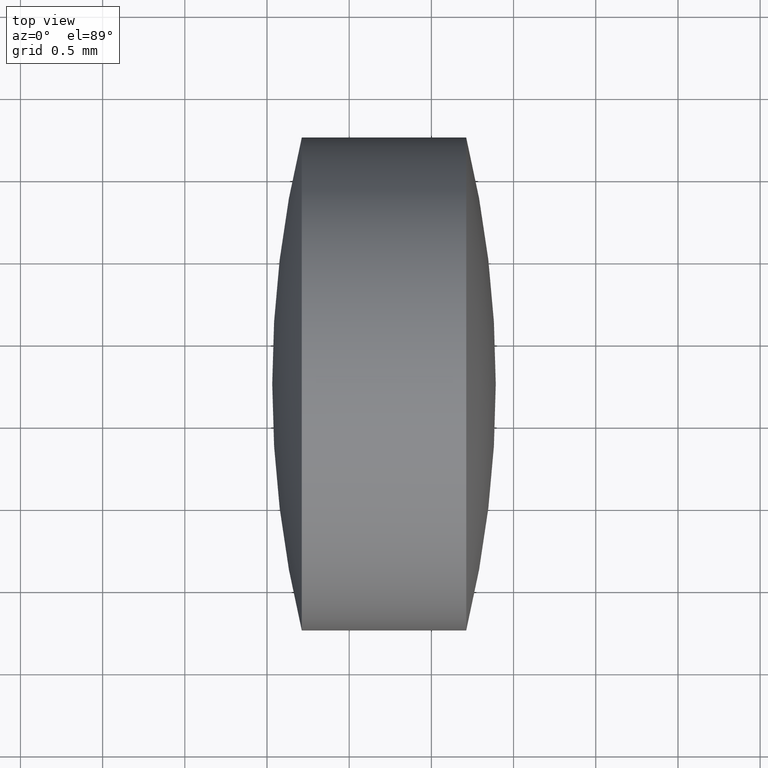
[diagram: clean part render]
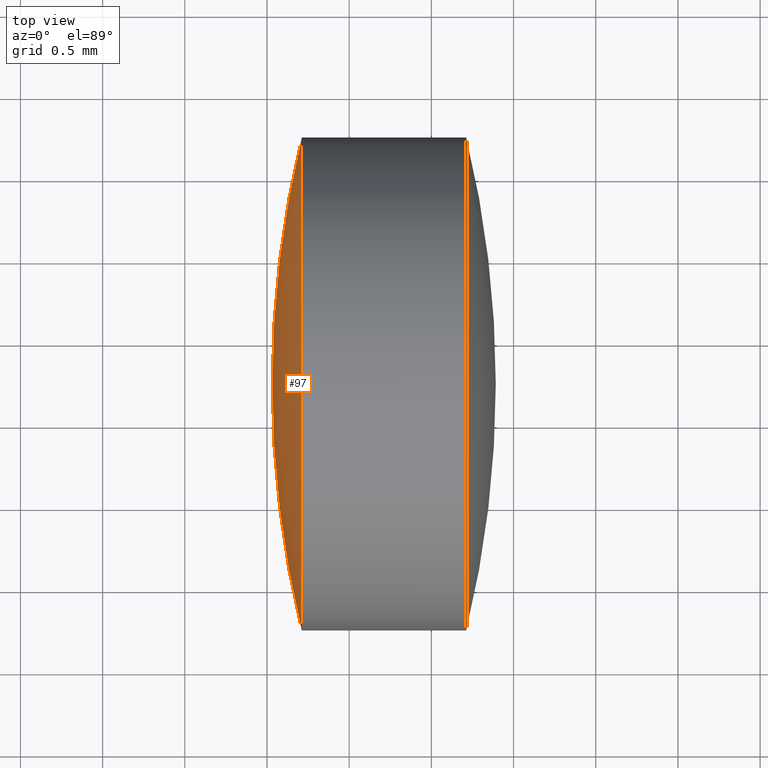
[diagram: same view with one face highlighted and labeled with its STEP entity id]
A machine part, top view. The second image highlights one B-rep face of the part: STEP entity #97.
In plain terms, the highlighted spherical surface has radius 6.3433 mm.
Its self-contained STEP definition (entity closure, byte-faithful):
#3 = CIRCLE ( 'NONE', #6, 6.343264629644567200 ) ;
#6 = AXIS2_PLACEMENT_3D ( 'NONE', #142, #54, #74 ) ;
#22 = CARTESIAN_POINT ( 'NONE',  ( 9.711656042241019200, 4.242084833774320900, -1.836980695753577600E-016 ) ) ;
#26 = VERTEX_POINT ( 'NONE', #22 ) ;
#29 = DIRECTION ( 'NONE',  ( 2.842884826176247500E-031, 1.224646799147353200E-016, -1.000000000000000000 ) ) ;
#42 = AXIS2_PLACEMENT_3D ( 'NONE', #296, #68, #269 ) ;
#45 = DIRECTION ( 'NONE',  ( -1.000000000000000000, 2.321391627492575400E-015, -0.0000000000000000000 ) ) ;
#46 = EDGE_CURVE ( 'NONE', #26, #137, #121, .T. ) ;
#54 = DIRECTION ( 'NONE',  ( 0.0000000000000000000, 0.0000000000000000000, 1.000000000000000000 ) ) ;
#56 = CIRCLE ( 'NONE', #184, 6.343264629644565400 ) ;
#62 = DIRECTION ( 'NONE',  ( 0.0000000000000000000, 1.000000000000000000, 1.224646799147353000E-016 ) ) ;
#65 = EDGE_CURVE ( 'NONE', #137, #254, #3, .T. ) ;
#68 = DIRECTION ( 'NONE',  ( 0.0000000000000000000, 0.0000000000000000000, -1.000000000000000000 ) ) ;
#74 = DIRECTION ( 'NONE',  ( 1.000000000000000000, 0.0000000000000000000, 0.0000000000000000000 ) ) ;
#97 = ADVANCED_FACE ( 'NONE', ( #242 ), #181, .T. ) ;
#121 = CIRCLE ( 'NONE', #155, 1.500008571477554200 ) ;
#137 = VERTEX_POINT ( 'NONE', #300 ) ;
#142 = CARTESIAN_POINT ( 'NONE',  ( 15.87501392956135100, 5.742093405251858400, 0.0000000000000000000 ) ) ;
#153 = CARTESIAN_POINT ( 'NONE',  ( 9.531749299916786100, 5.742093405251872600, 0.0000000000000000000 ) ) ;
#155 = AXIS2_PLACEMENT_3D ( 'NONE', #270, #45, #170 ) ;
#170 = DIRECTION ( 'NONE',  ( -2.312951417694968900E-015, -1.000000000000000000, 0.0000000000000000000 ) ) ;
#181 = SPHERICAL_SURFACE ( 'NONE', #42, 6.343264629644565400 ) ;
#184 = AXIS2_PLACEMENT_3D ( 'NONE', #261, #29, #62 ) ;
#185 = ORIENTED_EDGE ( 'NONE', *, *, #293, .F. ) ;
#206 = ORIENTED_EDGE ( 'NONE', *, *, #46, .T. ) ;
#226 = EDGE_LOOP ( 'NONE', ( #185, #206, #258 ) ) ;
#242 = FACE_OUTER_BOUND ( 'NONE', #226, .T. ) ;
#254 = VERTEX_POINT ( 'NONE', #153 ) ;
#258 = ORIENTED_EDGE ( 'NONE', *, *, #65, .T. ) ;
#261 = CARTESIAN_POINT ( 'NONE',  ( 15.87501392956135100, 5.742093405251858400, 0.0000000000000000000 ) ) ;
#269 = DIRECTION ( 'NONE',  ( 2.187798967578635600E-015, 1.000000000000000000, 0.0000000000000000000 ) ) ;
#270 = CARTESIAN_POINT ( 'NONE',  ( 9.711656042241022700, 5.742093405251862000, 0.0000000000000000000 ) ) ;
#293 = EDGE_CURVE ( 'NONE', #26, #254, #56, .T. ) ;
#296 = CARTESIAN_POINT ( 'NONE',  ( 15.87501392956135100, 5.742093405251858400, 0.0000000000000000000 ) ) ;
#300 = CARTESIAN_POINT ( 'NONE',  ( 9.711656042241026300, 7.242101976729413700, 0.0000000000000000000 ) ) ;